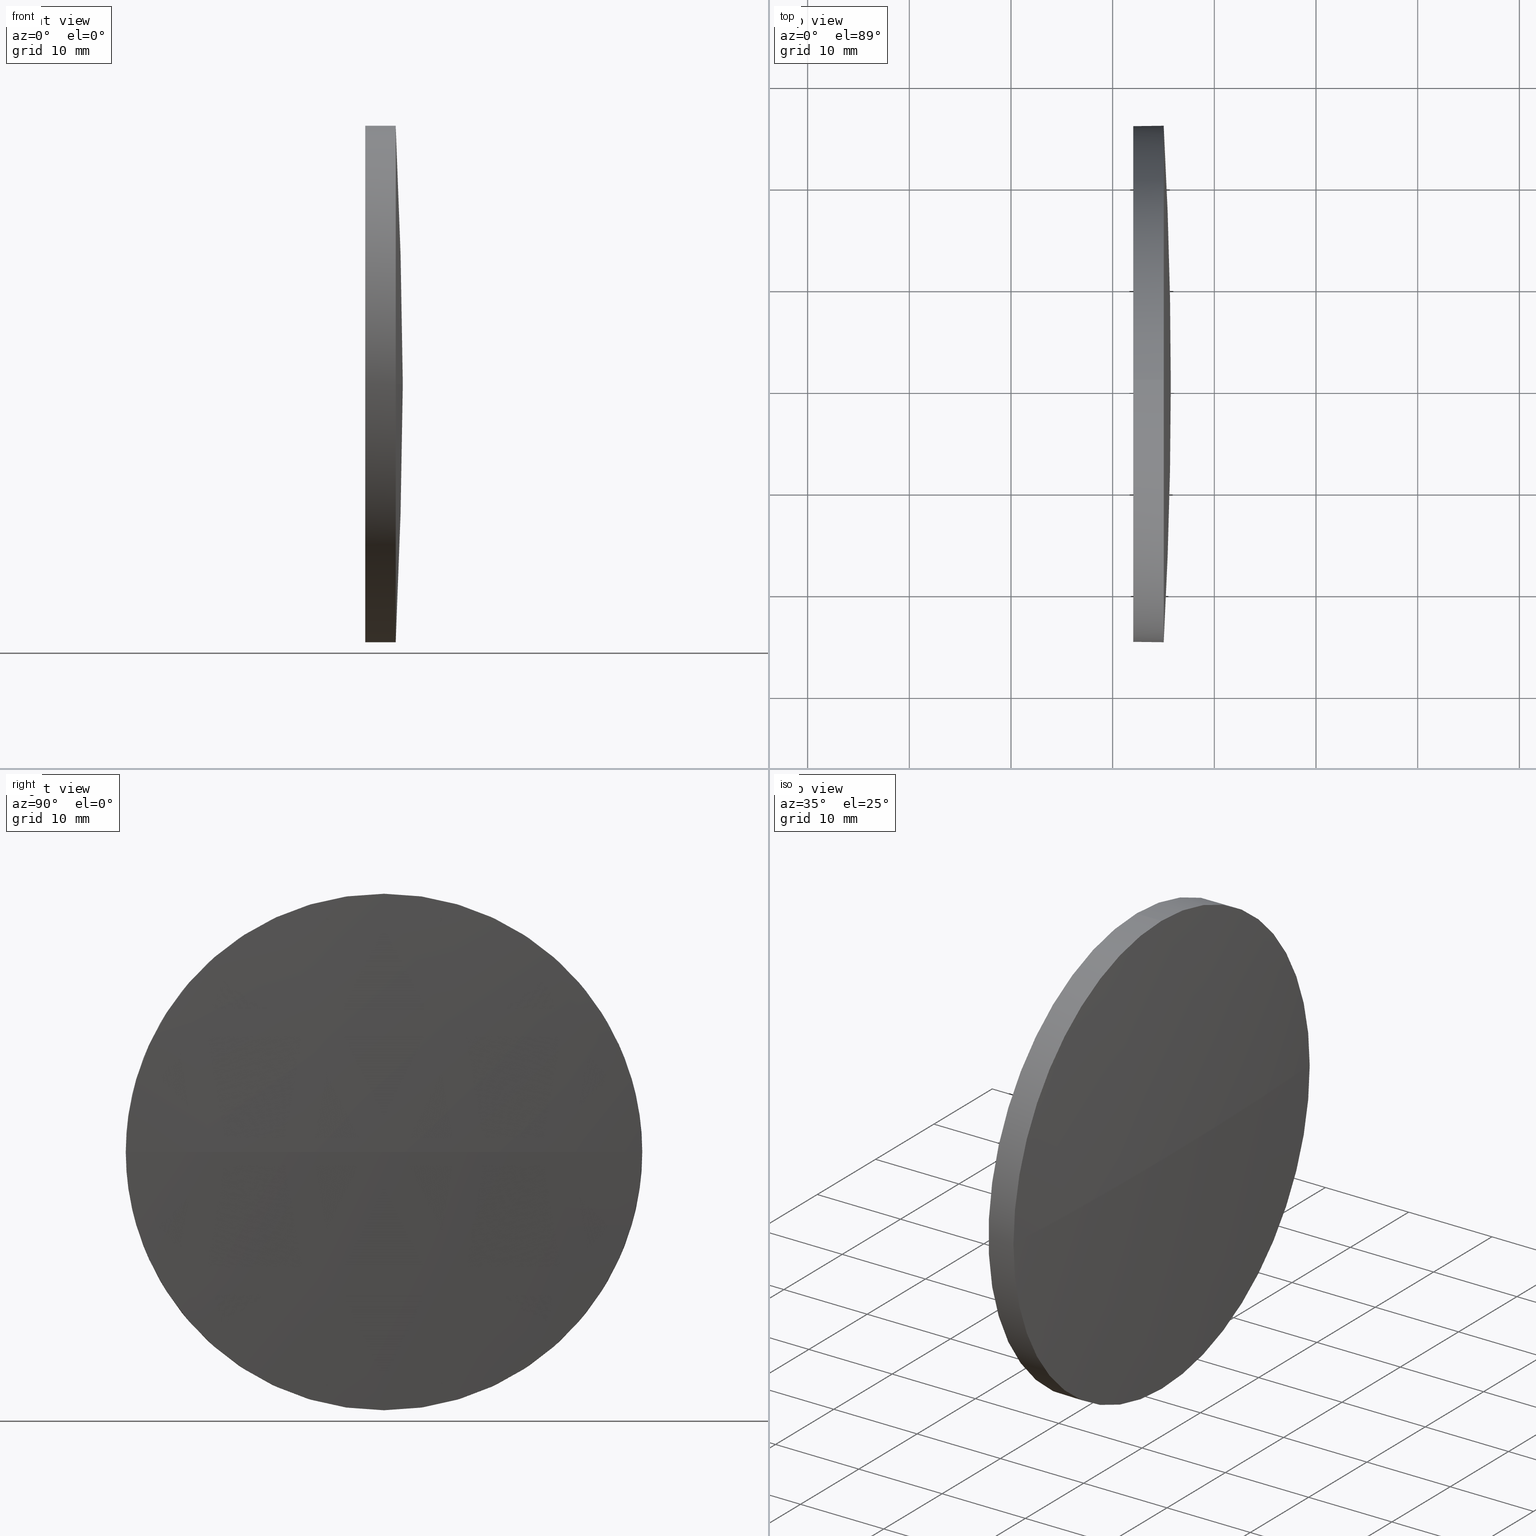
[diagram: canonical four-view strip — front | top / right | iso, engineering-drawing reading convention]
A machine part, canonical four-view strip (front | top / right | iso — engineering-drawing reading convention). The complete STEP part file that produces these views, byte-faithful:
ISO-10303-21;
HEADER;
FILE_DESCRIPTION (( 'STEP AP214' ),
    '1' );
FILE_NAME ('100393.STEP',
    '2019-06-05T02:14:08',
    ( '' ),
    ( '' ),
    'SwSTEP 2.0',
    'SolidWorks 2016',
    '' );
FILE_SCHEMA (( 'AUTOMOTIVE_DESIGN' ));
ENDSEC;

DATA;
#1 = DIRECTION ( 'NONE',  ( -1.000000000000000000, -0.0000000000000000000, -0.0000000000000000000 ) ) ;
#2 = CIRCLE ( 'NONE', #182, 461.1785714285788900 ) ;
#3 = CIRCLE ( 'NONE', #133, 461.1785714285788900 ) ;
#4 = AXIS2_PLACEMENT_3D ( 'NONE', #155, #34, #145 ) ;
#5 = APPLICATION_PROTOCOL_DEFINITION ( 'draft international standard', 'automotive_design', 1998, #143 ) ;
#6 = PRODUCT_RELATED_PRODUCT_CATEGORY ( 'part', '', ( #150 ) ) ;
#7 = CARTESIAN_POINT ( 'NONE',  ( 235.0208200792423800, 130.4671098528243900, -25.40000000000000600 ) ) ;
#8 = ORIENTED_EDGE ( 'NONE', *, *, #185, .F. ) ;
#9 = STYLED_ITEM ( 'NONE', ( #138 ), #15 ) ;
#10 = VECTOR ( 'NONE', #94, 1000.000000000000000 ) ;
#11 = ORIENTED_EDGE ( 'NONE', *, *, #180, .F. ) ;
#12 = ADVANCED_FACE ( 'NONE', ( #127 ), #121, .F. ) ;
#13 = CIRCLE ( 'NONE', #90, 25.40000000000000600 ) ;
#14 = STYLED_ITEM ( 'NONE', ( #184 ), #128 ) ;
#15 = MANIFOLD_SOLID_BREP ( '��ת1', #52 ) ;
#16 = CARTESIAN_POINT ( 'NONE',  ( 235.0208200792423800, 130.4671098528243900, 0.0000000000000000000 ) ) ;
#17 = DIRECTION ( 'NONE',  ( 0.0000000000000000000, 0.0000000000000000000, -1.000000000000000000 ) ) ;
#18 = VERTEX_POINT ( 'NONE', #149 ) ;
#19 = DIRECTION ( 'NONE',  ( -0.0000000000000000000, 0.0000000000000000000, -1.000000000000000000 ) ) ;
#20 = EDGE_LOOP ( 'NONE', ( #11, #28, #24, #176 ) ) ;
#21 = CARTESIAN_POINT ( 'NONE',  ( -225.4577513493365200, 130.4671098528243900, 0.0000000000000000000 ) ) ;
#22 =( NAMED_UNIT ( * ) PLANE_ANGLE_UNIT ( ) SI_UNIT ( $, .RADIAN. ) );
#23 = ORIENTED_EDGE ( 'NONE', *, *, #78, .T. ) ;
#24 = ORIENTED_EDGE ( 'NONE', *, *, #66, .F. ) ;
#25 = ADVANCED_FACE ( 'NONE', ( #170 ), #81, .T. ) ;
#26 = CARTESIAN_POINT ( 'NONE',  ( -225.4577513493365200, 130.4671098528243900, 0.0000000000000000000 ) ) ;
#27 =( NAMED_UNIT ( * ) SI_UNIT ( $, .STERADIAN. ) SOLID_ANGLE_UNIT ( ) );
#28 = ORIENTED_EDGE ( 'NONE', *, *, #51, .T. ) ;
#29 = PRODUCT_DEFINITION_FORMATION_WITH_SPECIFIED_SOURCE ( '�κ�', '', #150, .NOT_KNOWN. ) ;
#30 = FILL_AREA_STYLE ('',( #50 ) ) ;
#31 = COLOUR_RGB ( '',1.000000000000000000, 1.000000000000000000, 1.000000000000000000 ) ;
#32 = CARTESIAN_POINT ( 'NONE',  ( 235.0208200792423800, 130.4671098528243900, 0.0000000000000000000 ) ) ;
#33 =( NAMED_UNIT ( * ) PLANE_ANGLE_UNIT ( ) SI_UNIT ( $, .RADIAN. ) );
#34 = DIRECTION ( 'NONE',  ( 0.0000000000000000000, 0.0000000000000000000, 1.000000000000000000 ) ) ;
#35 = FACE_OUTER_BOUND ( 'NONE', #131, .T. ) ;
#36 = LINE ( 'NONE', #93, #39 ) ;
#37 = ADVANCED_FACE ( 'NONE', ( #72 ), #117, .T. ) ;
#38 = PRODUCT_DEFINITION_SHAPE ( 'NONE', 'NONE',  #173 ) ;
#39 = VECTOR ( 'NONE', #126, 1000.000000000000000 ) ;
#40 = AXIS2_PLACEMENT_3D ( 'NONE', #104, #60, #157 ) ;
#41 = ORIENTED_EDGE ( 'NONE', *, *, #51, .F. ) ;
#42 = SPHERICAL_SURFACE ( 'NONE', #159, 461.1785714285788900 ) ;
#43 = DIRECTION ( 'NONE',  ( 0.0000000000000000000, 0.0000000000000000000, 1.000000000000000000 ) ) ;
#44 = SURFACE_STYLE_FILL_AREA ( #70 ) ;
#45 = LINE ( 'NONE', #165, #10 ) ;
#46 = DIRECTION ( 'NONE',  ( 0.0000000000000000000, 0.0000000000000000000, 1.000000000000000000 ) ) ;
#47 = EDGE_LOOP ( 'NONE', ( #55, #113, #116, #88, #107 ) ) ;
#48 = DIRECTION ( 'NONE',  ( -1.000000000000000000, -0.0000000000000000000, -0.0000000000000000000 ) ) ;
#49 = PRODUCT_CONTEXT ( 'NONE', #143, 'mechanical' ) ;
#50 = FILL_AREA_STYLE_COLOUR ( '', #31 ) ;
#51 = EDGE_CURVE ( 'NONE', #161, #172, #3, .T. ) ;
#52 = CLOSED_SHELL ( 'NONE', ( #37, #98, #25, #132, #12 ) ) ;
#53 = EDGE_CURVE ( 'NONE', #82, #183, #123, .T. ) ;
#54 = ORIENTED_EDGE ( 'NONE', *, *, #66, .T. ) ;
#55 = ORIENTED_EDGE ( 'NONE', *, *, #53, .T. ) ;
#56 = ORIENTED_EDGE ( 'NONE', *, *, #112, .F. ) ;
#57 =( LENGTH_UNIT ( ) NAMED_UNIT ( * ) SI_UNIT ( .MILLI., .METRE. ) );
#58 = DIRECTION ( 'NONE',  ( 0.0000000000000000000, 0.0000000000000000000, 1.000000000000000000 ) ) ;
#59 = DIRECTION ( 'NONE',  ( 0.0000000000000000000, 1.000000000000000000, 0.0000000000000000000 ) ) ;
#60 = DIRECTION ( 'NONE',  ( -1.000000000000000000, -0.0000000000000000000, -0.0000000000000000000 ) ) ;
#61 = FACE_OUTER_BOUND ( 'NONE', #20, .T. ) ;
#62 = DIRECTION ( 'NONE',  ( -1.000000000000000000, -0.0000000000000000000, -0.0000000000000000000 ) ) ;
#63 = DIRECTION ( 'NONE',  ( 0.0000000000000000000, 1.000000000000000000, 0.0000000000000000000 ) ) ;
#64 = SHAPE_DEFINITION_REPRESENTATION ( #38, #128 ) ;
#65 = SURFACE_STYLE_FILL_AREA ( #30 ) ;
#66 = EDGE_CURVE ( 'NONE', #183, #172, #99, .T. ) ;
#67 = CARTESIAN_POINT ( 'NONE',  ( 220.3307464569769000, 130.4671098528243900, 0.0000000000000000000 ) ) ;
#68 = CIRCLE ( 'NONE', #40, 25.40000000000000600 ) ;
#69 =( NAMED_UNIT ( * ) PLANE_ANGLE_UNIT ( ) SI_UNIT ( $, .RADIAN. ) );
#70 = FILL_AREA_STYLE ('',( #152 ) ) ;
#71 = CARTESIAN_POINT ( 'NONE',  ( 232.0208200792423800, 130.4671098528243900, 0.0000000000000000000 ) ) ;
#72 = FACE_OUTER_BOUND ( 'NONE', #47, .T. ) ;
#73 = CIRCLE ( 'NONE', #115, 25.40000000000000600 ) ;
#74 = CARTESIAN_POINT ( 'NONE',  ( 235.0208200792423800, 130.4671098528243900, 0.0000000000000000000 ) ) ;
#75 = CARTESIAN_POINT ( 'NONE',  ( 235.7208200792423700, 130.4671098528244200, 0.0000000000000000000 ) ) ;
#76 = ORIENTED_EDGE ( 'NONE', *, *, #87, .T. ) ;
#77 = AXIS2_PLACEMENT_3D ( 'NONE', #163, #1, #58 ) ;
#78 = EDGE_CURVE ( 'NONE', #91, #18, #68, .T. ) ;
#79 = ORIENTED_EDGE ( 'NONE', *, *, #185, .T. ) ;
#80 = PRESENTATION_LAYER_ASSIGNMENT (  '', '', ( #9 ) ) ;
#81 = SPHERICAL_SURFACE ( 'NONE', #114, 461.1785714285788900 ) ;
#82 = VERTEX_POINT ( 'NONE', #153 ) ;
#83 = AXIS2_PLACEMENT_3D ( 'NONE', #67, #174, #89 ) ;
#84 = CYLINDRICAL_SURFACE ( 'NONE', #105, 25.40000000000000600 ) ;
#85 = VERTEX_POINT ( 'NONE', #124 ) ;
#86 = CARTESIAN_POINT ( 'NONE',  ( 232.0208200792423800, 130.4671098528243900, -25.40000000000000600 ) ) ;
#87 = EDGE_CURVE ( 'NONE', #18, #91, #13, .T. ) ;
#88 = ORIENTED_EDGE ( 'NONE', *, *, #100, .F. ) ;
#89 = DIRECTION ( 'NONE',  ( 0.0000000000000000000, 0.0000000000000000000, 1.000000000000000000 ) ) ;
#90 = AXIS2_PLACEMENT_3D ( 'NONE', #169, #48, #154 ) ;
#91 = VERTEX_POINT ( 'NONE', #86 ) ;
#92 = DIRECTION ( 'NONE',  ( 1.000000000000000000, 0.0000000000000000000, 0.0000000000000000000 ) ) ;
#93 = CARTESIAN_POINT ( 'NONE',  ( 220.3307464569769000, 130.4671098528243900, 25.40000000000000600 ) ) ;
#94 = DIRECTION ( 'NONE',  ( -1.000000000000000000, -0.0000000000000000000, -0.0000000000000000000 ) ) ;
#95 = AXIS2_PLACEMENT_3D ( 'NONE', #32, #125, #111 ) ;
#96 = EDGE_LOOP ( 'NONE', ( #76, #23 ) ) ;
#97 = AXIS2_PLACEMENT_3D ( 'NONE', #16, #137, #43 ) ;
#98 = ADVANCED_FACE ( 'NONE', ( #61 ), #42, .T. ) ;
#99 = CIRCLE ( 'NONE', #77, 25.40000000000000600 ) ;
#100 = EDGE_CURVE ( 'NONE', #85, #18, #36, .T. ) ;
#101 =( GEOMETRIC_REPRESENTATION_CONTEXT ( 3 ) GLOBAL_UNCERTAINTY_ASSIGNED_CONTEXT ( ( #144 ) ) GLOBAL_UNIT_ASSIGNED_CONTEXT ( ( #57, #69, #27 ) ) REPRESENTATION_CONTEXT ( 'NONE', 'WORKASPACE' ) );
#102 = UNCERTAINTY_MEASURE_WITH_UNIT (LENGTH_MEASURE( 1.000000000000000100E-005 ), #178, 'distance_accuracy_value', 'NONE');
#103 = SURFACE_STYLE_USAGE ( .BOTH. , #186 ) ;
#104 = CARTESIAN_POINT ( 'NONE',  ( 232.0208200792423800, 130.4671098528243900, 0.0000000000000000000 ) ) ;
#105 = AXIS2_PLACEMENT_3D ( 'NONE', #181, #62, #46 ) ;
#106 = MECHANICAL_DESIGN_GEOMETRIC_PRESENTATION_REPRESENTATION (  '', ( #14 ), #130 ) ;
#107 = ORIENTED_EDGE ( 'NONE', *, *, #112, .T. ) ;
#108 =( NAMED_UNIT ( * ) SI_UNIT ( $, .STERADIAN. ) SOLID_ANGLE_UNIT ( ) );
#109 = DIRECTION ( 'NONE',  ( -1.000000000000000000, -0.0000000000000000000, -0.0000000000000000000 ) ) ;
#110 =( LENGTH_UNIT ( ) NAMED_UNIT ( * ) SI_UNIT ( .MILLI., .METRE. ) );
#111 = DIRECTION ( 'NONE',  ( 0.0000000000000000000, 0.0000000000000000000, 1.000000000000000000 ) ) ;
#112 = EDGE_CURVE ( 'NONE', #85, #82, #134, .T. ) ;
#113 = ORIENTED_EDGE ( 'NONE', *, *, #120, .T. ) ;
#114 = AXIS2_PLACEMENT_3D ( 'NONE', #26, #162, #59 ) ;
#115 = AXIS2_PLACEMENT_3D ( 'NONE', #74, #109, #146 ) ;
#116 = ORIENTED_EDGE ( 'NONE', *, *, #87, .F. ) ;
#117 = CYLINDRICAL_SURFACE ( 'NONE', #83, 25.40000000000000600 ) ;
#118 = ORIENTED_EDGE ( 'NONE', *, *, #180, .T. ) ;
#119 = DIRECTION ( 'NONE',  ( 0.0000000000000000000, 1.000000000000000000, 1.224646799147353200E-016 ) ) ;
#120 = EDGE_CURVE ( 'NONE', #183, #91, #45, .T. ) ;
#121 = PLANE ( 'NONE',  #160 ) ;
#122 = COLOUR_RGB ( '',1.000000000000000000, 1.000000000000000000, 1.000000000000000000 ) ;
#123 = CIRCLE ( 'NONE', #97, 25.40000000000000600 ) ;
#124 = CARTESIAN_POINT ( 'NONE',  ( 235.0208200792423800, 130.4671098528243900, 25.40000000000000600 ) ) ;
#125 = DIRECTION ( 'NONE',  ( -1.000000000000000000, -0.0000000000000000000, -0.0000000000000000000 ) ) ;
#126 = DIRECTION ( 'NONE',  ( -1.000000000000000000, -0.0000000000000000000, -0.0000000000000000000 ) ) ;
#127 = FACE_OUTER_BOUND ( 'NONE', #96, .T. ) ;
#128 = ADVANCED_BREP_SHAPE_REPRESENTATION ( '100393', ( #15, #4 ), #151 ) ;
#129 = EDGE_LOOP ( 'NONE', ( #41, #118, #56, #8 ) ) ;
#130 =( GEOMETRIC_REPRESENTATION_CONTEXT ( 3 ) GLOBAL_UNCERTAINTY_ASSIGNED_CONTEXT ( ( #171 ) ) GLOBAL_UNIT_ASSIGNED_CONTEXT ( ( #110, #22, #108 ) ) REPRESENTATION_CONTEXT ( 'NONE', 'WORKASPACE' ) );
#131 = EDGE_LOOP ( 'NONE', ( #141, #54, #79, #135, #158 ) ) ;
#132 = ADVANCED_FACE ( 'NONE', ( #35 ), #84, .T. ) ;
#133 = AXIS2_PLACEMENT_3D ( 'NONE', #139, #136, #119 ) ;
#134 = CIRCLE ( 'NONE', #95, 25.40000000000000600 ) ;
#135 = ORIENTED_EDGE ( 'NONE', *, *, #100, .T. ) ;
#136 = DIRECTION ( 'NONE',  ( 0.0000000000000000000, 1.224646799147353200E-016, -1.000000000000000000 ) ) ;
#137 = DIRECTION ( 'NONE',  ( -1.000000000000000000, -0.0000000000000000000, -0.0000000000000000000 ) ) ;
#138 = PRESENTATION_STYLE_ASSIGNMENT (( #103 ) ) ;
#139 = CARTESIAN_POINT ( 'NONE',  ( -225.4577513493365200, 130.4671098528243900, 0.0000000000000000000 ) ) ;
#140 = SURFACE_STYLE_USAGE ( .BOTH. , #167 ) ;
#141 = ORIENTED_EDGE ( 'NONE', *, *, #120, .F. ) ;
#142 =( NAMED_UNIT ( * ) SI_UNIT ( $, .STERADIAN. ) SOLID_ANGLE_UNIT ( ) );
#143 = APPLICATION_CONTEXT ( 'automotive_design' ) ;
#144 = UNCERTAINTY_MEASURE_WITH_UNIT (LENGTH_MEASURE( 1.000000000000000100E-005 ), #57, 'distance_accuracy_value', 'NONE');
#145 = DIRECTION ( 'NONE',  ( 1.000000000000000000, 0.0000000000000000000, 0.0000000000000000000 ) ) ;
#146 = DIRECTION ( 'NONE',  ( 0.0000000000000000000, 0.0000000000000000000, 1.000000000000000000 ) ) ;
#147 = MECHANICAL_DESIGN_GEOMETRIC_PRESENTATION_REPRESENTATION (  '', ( #9 ), #101 ) ;
#148 = PRESENTATION_LAYER_ASSIGNMENT (  '', '', ( #14 ) ) ;
#149 = CARTESIAN_POINT ( 'NONE',  ( 232.0208200792423800, 130.4671098528243900, 25.40000000000000600 ) ) ;
#150 = PRODUCT ( '100393', '100393', '', ( #49 ) ) ;
#151 =( GEOMETRIC_REPRESENTATION_CONTEXT ( 3 ) GLOBAL_UNCERTAINTY_ASSIGNED_CONTEXT ( ( #102 ) ) GLOBAL_UNIT_ASSIGNED_CONTEXT ( ( #178, #33, #142 ) ) REPRESENTATION_CONTEXT ( 'NONE', 'WORKASPACE' ) );
#152 = FILL_AREA_STYLE_COLOUR ( '', #122 ) ;
#153 = CARTESIAN_POINT ( 'NONE',  ( 235.0208200792423800, 155.8671098528241700, 0.0000000000000000000 ) ) ;
#154 = DIRECTION ( 'NONE',  ( 0.0000000000000000000, 0.0000000000000000000, 1.000000000000000000 ) ) ;
#155 = CARTESIAN_POINT ( 'NONE',  ( 0.0000000000000000000, 0.0000000000000000000, 0.0000000000000000000 ) ) ;
#156 = APPLICATION_CONTEXT ( 'automotive_design' ) ;
#157 = DIRECTION ( 'NONE',  ( 0.0000000000000000000, 0.0000000000000000000, 1.000000000000000000 ) ) ;
#158 = ORIENTED_EDGE ( 'NONE', *, *, #78, .F. ) ;
#159 = AXIS2_PLACEMENT_3D ( 'NONE', #21, #19, #63 ) ;
#160 = AXIS2_PLACEMENT_3D ( 'NONE', #71, #175, #17 ) ;
#161 = VERTEX_POINT ( 'NONE', #75 ) ;
#162 = DIRECTION ( 'NONE',  ( -0.0000000000000000000, 0.0000000000000000000, -1.000000000000000000 ) ) ;
#163 = CARTESIAN_POINT ( 'NONE',  ( 235.0208200792423800, 130.4671098528243900, 0.0000000000000000000 ) ) ;
#164 = PRODUCT_DEFINITION_CONTEXT ( 'detailed design', #156, 'design' ) ;
#165 = CARTESIAN_POINT ( 'NONE',  ( 220.3307464569769000, 130.4671098528243900, -25.40000000000000600 ) ) ;
#166 = DIRECTION ( 'NONE',  ( -0.0000000000000000000, 0.0000000000000000000, 1.000000000000000000 ) ) ;
#167 = SURFACE_SIDE_STYLE ('',( #65 ) ) ;
#168 = APPLICATION_PROTOCOL_DEFINITION ( 'draft international standard', 'automotive_design', 1998, #156 ) ;
#169 = CARTESIAN_POINT ( 'NONE',  ( 232.0208200792423800, 130.4671098528243900, 0.0000000000000000000 ) ) ;
#170 = FACE_OUTER_BOUND ( 'NONE', #129, .T. ) ;
#171 = UNCERTAINTY_MEASURE_WITH_UNIT (LENGTH_MEASURE( 1.000000000000000100E-005 ), #110, 'distance_accuracy_value', 'NONE');
#172 = VERTEX_POINT ( 'NONE', #179 ) ;
#173 = PRODUCT_DEFINITION ( 'δ֪', '', #29, #164 ) ;
#174 = DIRECTION ( 'NONE',  ( -1.000000000000000000, -0.0000000000000000000, -0.0000000000000000000 ) ) ;
#175 = DIRECTION ( 'NONE',  ( 1.000000000000000000, 0.0000000000000000000, 0.0000000000000000000 ) ) ;
#176 = ORIENTED_EDGE ( 'NONE', *, *, #53, .F. ) ;
#177 = CARTESIAN_POINT ( 'NONE',  ( -225.4577513493365200, 130.4671098528243900, 0.0000000000000000000 ) ) ;
#178 =( LENGTH_UNIT ( ) NAMED_UNIT ( * ) SI_UNIT ( .MILLI., .METRE. ) );
#179 = CARTESIAN_POINT ( 'NONE',  ( 235.0208200792423800, 105.0671098528246100, -3.110602869834250800E-015 ) ) ;
#180 = EDGE_CURVE ( 'NONE', #161, #82, #2, .T. ) ;
#181 = CARTESIAN_POINT ( 'NONE',  ( 220.3307464569769000, 130.4671098528243900, 0.0000000000000000000 ) ) ;
#182 = AXIS2_PLACEMENT_3D ( 'NONE', #177, #166, #92 ) ;
#183 = VERTEX_POINT ( 'NONE', #7 ) ;
#184 = PRESENTATION_STYLE_ASSIGNMENT (( #140 ) ) ;
#185 = EDGE_CURVE ( 'NONE', #172, #85, #73, .T. ) ;
#186 = SURFACE_SIDE_STYLE ('',( #44 ) ) ;
ENDSEC;
END-ISO-10303-21;
